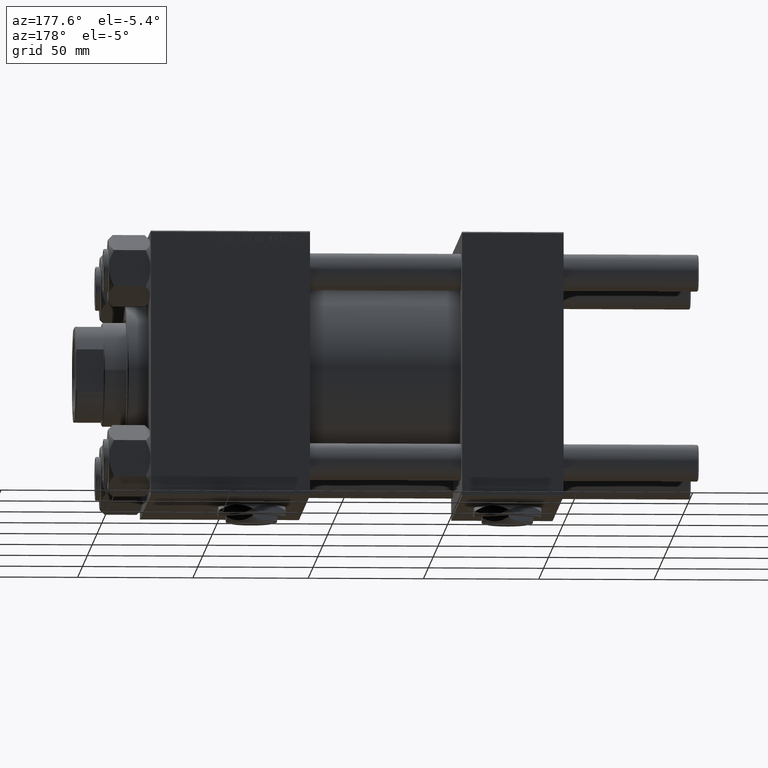
[diagram: clean part render]
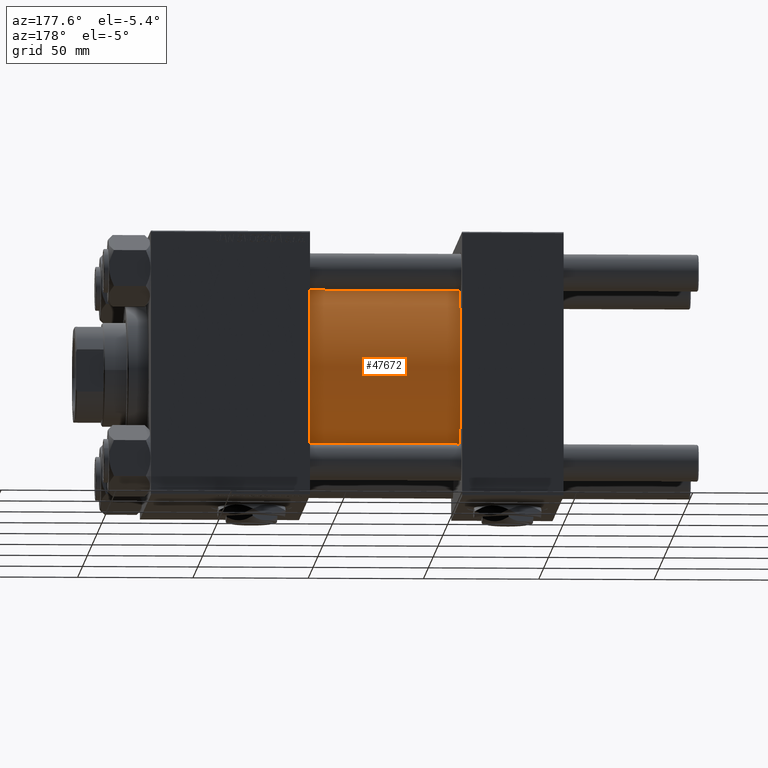
[diagram: same view with one face highlighted and labeled with its STEP entity id]
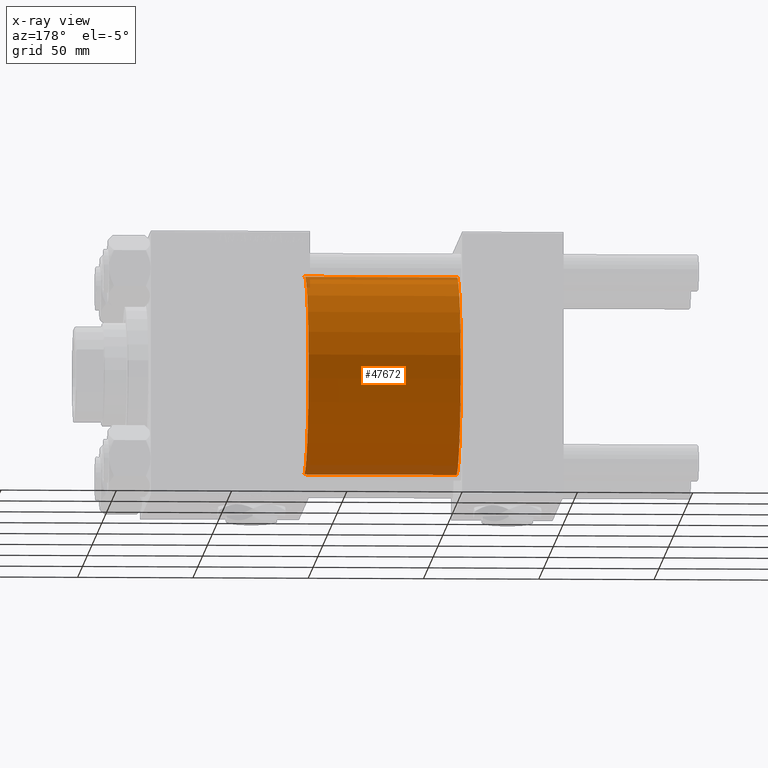
[diagram: x-ray of the same camera — body ghosted, the highlighted face saturated]
A machine part, auxiliary view. The second image highlights one B-rep face of the part: STEP entity #47672.
The next image is the same camera in x-ray: the body ghosted, the highlighted face saturated — about 6% of this face is hidden behind the body in this view.
In plain terms, the highlighted cylindrical surface (partial cylindrical patch) has radius 43 mm, axis along (-1, -0, -0).
Its self-contained STEP definition (entity closure, byte-faithful):
#1138 = VECTOR ( 'NONE', #29084, 1000.000000000000000 ) ;
#3349 = VERTEX_POINT ( 'NONE', #32459 ) ;
#3723 = ORIENTED_EDGE ( 'NONE', *, *, #4392, .F. ) ;
#4392 = EDGE_CURVE ( 'NONE', #8562, #3349, #47266, .T. ) ;
#5194 = CYLINDRICAL_SURFACE ( 'NONE', #49012, 43.00000000000000000 ) ;
#6607 = DIRECTION ( 'NONE',  ( 1.000000000000000000, 0.000000000000000000, 0.000000000000000000 ) ) ;
#7164 = CARTESIAN_POINT ( 'NONE',  ( 110.0000000000000000, 5.265981236333618470E-15, -43.00000000000000000 ) ) ;
#8562 = VERTEX_POINT ( 'NONE', #7164 ) ;
#12616 = FACE_OUTER_BOUND ( 'NONE', #35033, .T. ) ;
#15122 = VERTEX_POINT ( 'NONE', #23916 ) ;
#19396 = ORIENTED_EDGE ( 'NONE', *, *, #32253, .F. ) ;
#22953 = ORIENTED_EDGE ( 'NONE', *, *, #24144, .T. ) ;
#22975 = CARTESIAN_POINT ( 'NONE',  ( 110.0000000000000000, 0.000000000000000000, 0.000000000000000000 ) ) ;
#23916 = CARTESIAN_POINT ( 'NONE',  ( 44.00000000000000000, 0.000000000000000000, 43.00000000000000000 ) ) ;
#24144 = EDGE_CURVE ( 'NONE', #8562, #45887, #40207, .T. ) ;
#24500 = DIRECTION ( 'NONE',  ( -1.000000000000000000, -0.000000000000000000, -0.000000000000000000 ) ) ;
#26637 = VECTOR ( 'NONE', #34679, 1000.000000000000000 ) ;
#27205 = DIRECTION ( 'NONE',  ( 0.000000000000000000, 0.000000000000000000, -1.000000000000000000 ) ) ;
#27418 = ORIENTED_EDGE ( 'NONE', *, *, #44422, .T. ) ;
#28695 = AXIS2_PLACEMENT_3D ( 'NONE', #22975, #6607, #27205 ) ;
#29084 = DIRECTION ( 'NONE',  ( -1.000000000000000000, -0.000000000000000000, -0.000000000000000000 ) ) ;
#30334 = DIRECTION ( 'NONE',  ( 1.000000000000000000, -0.000000000000000000, 0.000000000000000000 ) ) ;
#30723 = CARTESIAN_POINT ( 'NONE',  ( 44.00000000000000000, 5.265981236333618470E-15, -43.00000000000000000 ) ) ;
#32253 = EDGE_CURVE ( 'NONE', #3349, #15122, #33894, .T. ) ;
#32459 = CARTESIAN_POINT ( 'NONE',  ( 110.0000000000000000, 0.000000000000000000, 43.00000000000000000 ) ) ;
#33894 = LINE ( 'NONE', #42083, #26637 ) ;
#34566 = CARTESIAN_POINT ( 'NONE',  ( 44.00000000000000000, 0.000000000000000000, 0.000000000000000000 ) ) ;
#34679 = DIRECTION ( 'NONE',  ( -1.000000000000000000, -0.000000000000000000, -0.000000000000000000 ) ) ;
#35033 = EDGE_LOOP ( 'NONE', ( #3723, #22953, #27418, #19396 ) ) ;
#36938 = CARTESIAN_POINT ( 'NONE',  ( 110.0000000000000000, 0.000000000000000000, 0.000000000000000000 ) ) ;
#37196 = DIRECTION ( 'NONE',  ( 0.000000000000000000, 0.000000000000000000, 1.000000000000000000 ) ) ;
#39557 = CIRCLE ( 'NONE', #46328, 43.00000000000000000 ) ;
#40207 = LINE ( 'NONE', #44942, #1138 ) ;
#42083 = CARTESIAN_POINT ( 'NONE',  ( 110.0000000000000000, 0.000000000000000000, 43.00000000000000000 ) ) ;
#44422 = EDGE_CURVE ( 'NONE', #45887, #15122, #39557, .T. ) ;
#44942 = CARTESIAN_POINT ( 'NONE',  ( 110.0000000000000000, 5.265981236333618470E-15, -43.00000000000000000 ) ) ;
#45887 = VERTEX_POINT ( 'NONE', #30723 ) ;
#46328 = AXIS2_PLACEMENT_3D ( 'NONE', #34566, #30334, #46726 ) ;
#46726 = DIRECTION ( 'NONE',  ( 0.000000000000000000, 0.000000000000000000, 1.000000000000000000 ) ) ;
#47266 = CIRCLE ( 'NONE', #28695, 43.00000000000000000 ) ;
#47672 = ADVANCED_FACE ( 'NONE', ( #12616 ), #5194, .T. ) ;
#49012 = AXIS2_PLACEMENT_3D ( 'NONE', #36938, #24500, #37196 ) ;